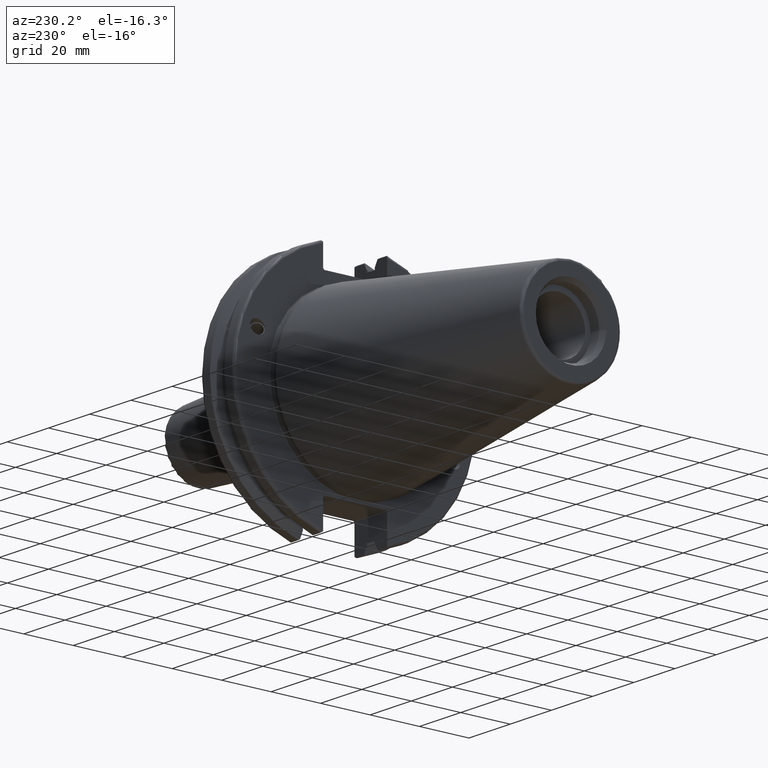
[diagram: clean part render]
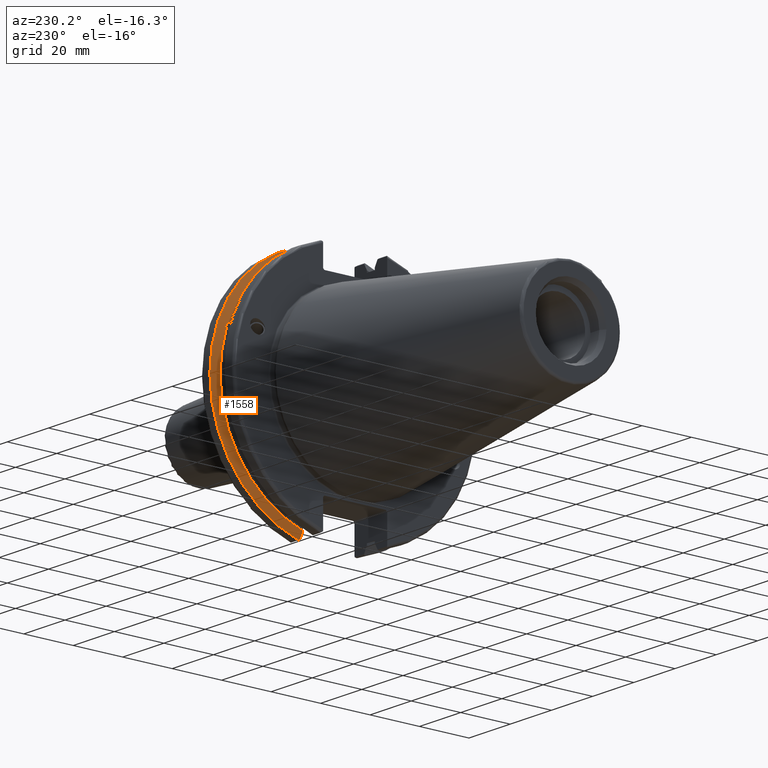
[diagram: same view with one face highlighted and labeled with its STEP entity id]
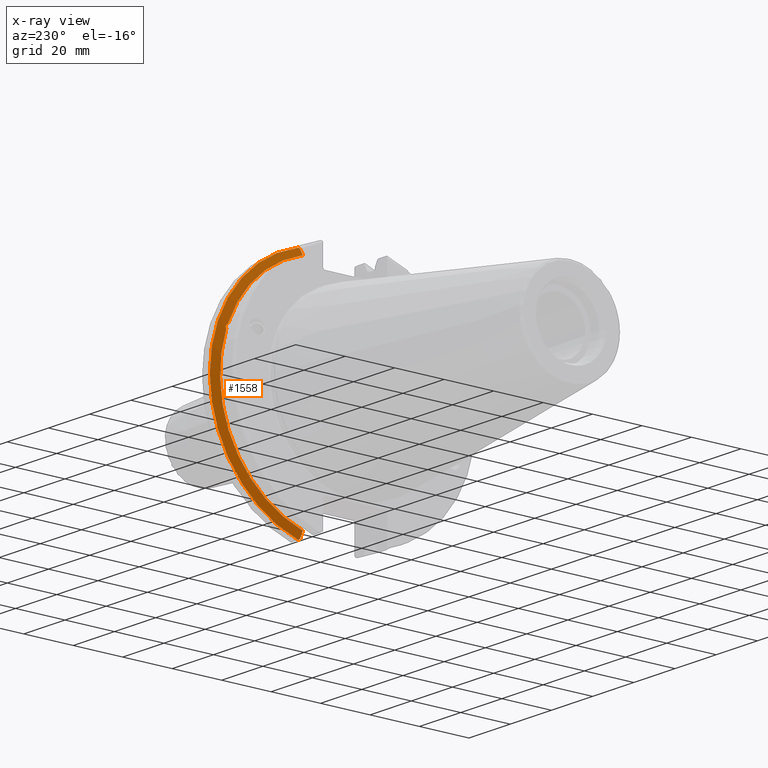
[diagram: x-ray of the same camera — body ghosted, the highlighted face saturated]
A machine part, auxiliary view. The second image highlights one B-rep face of the part: STEP entity #1558.
The next image is the same camera in x-ray: the body ghosted, the highlighted face saturated — about 0% of this face is hidden behind the body in this view.
In plain terms, the highlighted conical surface has half-angle 60 deg.
Its self-contained STEP definition (entity closure, byte-faithful):
#23=(
BOUNDED_CURVE()
B_SPLINE_CURVE(2,(#2898,#2899,#2900),.UNSPECIFIED.,.F.,.F.)
B_SPLINE_CURVE_WITH_KNOTS((3,3),(0.325260944932521,0.390084992222202),
 .UNSPECIFIED.)
CURVE()
GEOMETRIC_REPRESENTATION_ITEM()
RATIONAL_B_SPLINE_CURVE((1.00019140645994,1.00011477674864,1.))
REPRESENTATION_ITEM('')
);
#24=(
BOUNDED_CURVE()
B_SPLINE_CURVE(2,(#2912,#2913,#2914),.UNSPECIFIED.,.F.,.F.)
B_SPLINE_CURVE_WITH_KNOTS((3,3),(0.0558332664532001,0.331657177124504),
 .UNSPECIFIED.)
CURVE()
GEOMETRIC_REPRESENTATION_ITEM()
RATIONAL_B_SPLINE_CURVE((1.00012873636632,1.00038235574022,1.))
REPRESENTATION_ITEM('')
);
#29=(
BOUNDED_CURVE()
B_SPLINE_CURVE(2,(#3077,#3078,#3079),.UNSPECIFIED.,.F.,.F.)
B_SPLINE_CURVE_WITH_KNOTS((3,3),(0.,0.275823910671402),.UNSPECIFIED.)
CURVE()
GEOMETRIC_REPRESENTATION_ITEM()
RATIONAL_B_SPLINE_CURVE((1.,1.00038235574129,1.00012873636668))
REPRESENTATION_ITEM('')
);
#30=(
BOUNDED_CURVE()
B_SPLINE_CURVE(2,(#3094,#3095,#3096),.UNSPECIFIED.,.F.,.F.)
B_SPLINE_CURVE_WITH_KNOTS((3,3),(0.,0.0648240472897064),.UNSPECIFIED.)
CURVE()
GEOMETRIC_REPRESENTATION_ITEM()
RATIONAL_B_SPLINE_CURVE((1.,1.00011477674844,1.00019140645961))
REPRESENTATION_ITEM('')
);
#48=B_SPLINE_CURVE_WITH_KNOTS('',3,(#2702,#2703,#2704,#2705,#2706,#2707,
#2708,#2709),.UNSPECIFIED.,.F.,.F.,(4,2,2,4),(0.426712868358719,0.441644498666905,
0.480313313223129,0.518982127779353),.UNSPECIFIED.);
#52=B_SPLINE_CURVE_WITH_KNOTS('',3,(#2764,#2765,#2766,#2767,#2768,#2769,
#2770,#2771),.UNSPECIFIED.,.F.,.F.,(4,2,2,4),(0.518982127779353,0.557650942335576,
0.5963197568918,0.611251387199989),.UNSPECIFIED.);
#79=CONICAL_SURFACE('',#1741,47.8172386482472,1.0471975511966);
#437=FACE_OUTER_BOUND('',#545,.T.);
#545=EDGE_LOOP('',(#1414,#1415,#1416,#1417,#1418,#1419,#1420,#1421,#1422));
#603=CIRCLE('',#1678,46.4219772964944);
#625=CIRCLE('',#1734,49.2125);
#628=CIRCLE('',#1742,46.4219772964944);
#711=VERTEX_POINT('',#2699);
#712=VERTEX_POINT('',#2701);
#719=VERTEX_POINT('',#2762);
#728=VERTEX_POINT('',#2804);
#754=VERTEX_POINT('',#2895);
#755=VERTEX_POINT('',#2897);
#780=VERTEX_POINT('',#3074);
#781=VERTEX_POINT('',#3076);
#784=VERTEX_POINT('',#3092);
#889=EDGE_CURVE('',#712,#711,#48,.T.);
#897=EDGE_CURVE('',#711,#719,#52,.T.);
#909=EDGE_CURVE('',#728,#712,#603,.T.);
#942=EDGE_CURVE('',#754,#755,#23,.T.);
#947=EDGE_CURVE('',#754,#728,#24,.T.);
#992=EDGE_CURVE('',#781,#780,#29,.T.);
#1000=EDGE_CURVE('',#784,#780,#30,.T.);
#1001=EDGE_CURVE('',#755,#784,#625,.T.);
#1007=EDGE_CURVE('',#719,#781,#628,.T.);
#1414=ORIENTED_EDGE('',*,*,#889,.T.);
#1415=ORIENTED_EDGE('',*,*,#897,.T.);
#1416=ORIENTED_EDGE('',*,*,#1007,.T.);
#1417=ORIENTED_EDGE('',*,*,#992,.T.);
#1418=ORIENTED_EDGE('',*,*,#1000,.F.);
#1419=ORIENTED_EDGE('',*,*,#1001,.F.);
#1420=ORIENTED_EDGE('',*,*,#942,.F.);
#1421=ORIENTED_EDGE('',*,*,#947,.T.);
#1422=ORIENTED_EDGE('',*,*,#909,.T.);
#1558=ADVANCED_FACE('',(#437),#79,.T.);
#1678=AXIS2_PLACEMENT_3D('',#2805,#1975,#1976);
#1734=AXIS2_PLACEMENT_3D('',#3098,#2132,#2133);
#1741=AXIS2_PLACEMENT_3D('',#3111,#2149,#2150);
#1742=AXIS2_PLACEMENT_3D('',#3112,#2151,#2152);
#1975=DIRECTION('center_axis',(1.,0.,0.));
#1976=DIRECTION('ref_axis',(0.,0.,-1.));
#2132=DIRECTION('center_axis',(1.,0.,0.));
#2133=DIRECTION('ref_axis',(0.,0.,-1.));
#2149=DIRECTION('center_axis',(1.,0.,0.));
#2150=DIRECTION('ref_axis',(0.,1.,0.));
#2151=DIRECTION('center_axis',(1.,0.,0.));
#2152=DIRECTION('ref_axis',(0.,0.,-1.));
#2699=CARTESIAN_POINT('',(13.2341,43.923494649906,15.9868446375166));
#2701=CARTESIAN_POINT('',(13.0491,43.9096390749305,15.0646464421033));
#2702=CARTESIAN_POINT('Ctrl Pts',(13.0491,43.9096390749305,15.0646464421033));
#2703=CARTESIAN_POINT('Ctrl Pts',(13.0660815609661,43.9250360001461,15.1104047527575));
#2704=CARTESIAN_POINT('Ctrl Pts',(13.0821132459668,43.9385582852181,15.1564111356409));
#2705=CARTESIAN_POINT('Ctrl Pts',(13.1358132615496,43.9797830409459,15.3217566390709));
#2706=CARTESIAN_POINT('Ctrl Pts',(13.1719838933644,43.9989016655819,15.4570249042868));
#2707=CARTESIAN_POINT('Ctrl Pts',(13.2212913174802,43.9931221605126,15.7289849146254));
#2708=CARTESIAN_POINT('Ctrl Pts',(13.2341,43.9675796948952,15.8657219718732));
#2709=CARTESIAN_POINT('Ctrl Pts',(13.2341,43.923494649906,15.9868446375166));
#2762=CARTESIAN_POINT('',(13.0491,43.3201030900029,16.684383248648));
#2764=CARTESIAN_POINT('Ctrl Pts',(13.2341,43.923494649906,15.9868446375166));
#2765=CARTESIAN_POINT('Ctrl Pts',(13.2341,43.8794096049169,16.10796730316));
#2766=CARTESIAN_POINT('Ctrl Pts',(13.2212913174802,43.8110833825827,16.2291323464527));
#2767=CARTESIAN_POINT('Ctrl Pts',(13.1719838933644,43.6406982153492,16.441180795372));
#2768=CARTESIAN_POINT('Ctrl Pts',(13.1358132615496,43.5391037343221,16.5325130832406));
#2769=CARTESIAN_POINT('Ctrl Pts',(13.0821132459668,43.4012416983557,16.6326763251437));
#2770=CARTESIAN_POINT('Ctrl Pts',(13.0660815609661,43.3613106941341,16.6592273018006));
#2771=CARTESIAN_POINT('Ctrl Pts',(13.0491,43.3201030900029,16.684383248648));
#2804=CARTESIAN_POINT('',(13.0491,12.95,-44.5791147973605));
#2805=CARTESIAN_POINT('Origin',(13.0491,0.,0.));
#2895=CARTESIAN_POINT('',(14.3818103943757,12.95,-46.9780755322918));
#2897=CARTESIAN_POINT('',(14.6602090340487,13.4317035994433,-47.3440544806494));
#2898=CARTESIAN_POINT('Ctrl Pts',(14.3818103943757,12.95,-46.9780755322918));
#2899=CARTESIAN_POINT('Ctrl Pts',(14.5199310333617,13.1896660169965,-47.1601640966264));
#2900=CARTESIAN_POINT('Ctrl Pts',(14.6602090340487,13.4317035994433,-47.3440544806494));
#2912=CARTESIAN_POINT('Ctrl Pts',(14.3818103943757,12.95,-46.9780755322918));
#2913=CARTESIAN_POINT('Ctrl Pts',(13.6979955094851,12.95,-45.7494966802933));
#2914=CARTESIAN_POINT('Ctrl Pts',(13.0491,12.95,-44.5791147973604));
#3074=CARTESIAN_POINT('',(14.3818103943757,12.95,46.9780755322918));
#3076=CARTESIAN_POINT('',(13.0491,12.95,44.5791147973604));
#3077=CARTESIAN_POINT('Ctrl Pts',(13.0491,12.95,44.5791147973604));
#3078=CARTESIAN_POINT('Ctrl Pts',(13.6979955094846,12.95,45.7494966802924));
#3079=CARTESIAN_POINT('Ctrl Pts',(14.3818103943757,12.95,46.9780755322918));
#3092=CARTESIAN_POINT('',(14.6602090340487,13.4317035994433,47.3440544806494));
#3094=CARTESIAN_POINT('Ctrl Pts',(14.6602090340487,13.4317035994433,47.3440544806494));
#3095=CARTESIAN_POINT('Ctrl Pts',(14.5199310333618,13.1896660169966,47.1601640966264));
#3096=CARTESIAN_POINT('Ctrl Pts',(14.3818103943757,12.95,46.9780755322918));
#3098=CARTESIAN_POINT('Origin',(14.6602090340487,0.,0.));
#3111=CARTESIAN_POINT('Origin',(13.8546545170244,0.,0.));
#3112=CARTESIAN_POINT('Origin',(13.0491,0.,0.));